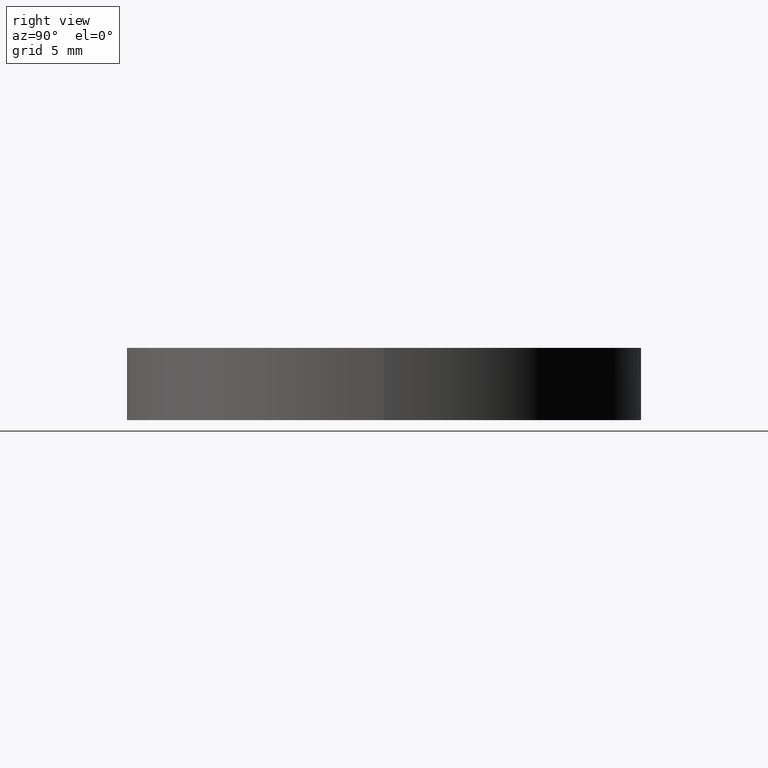
[diagram: clean part render]
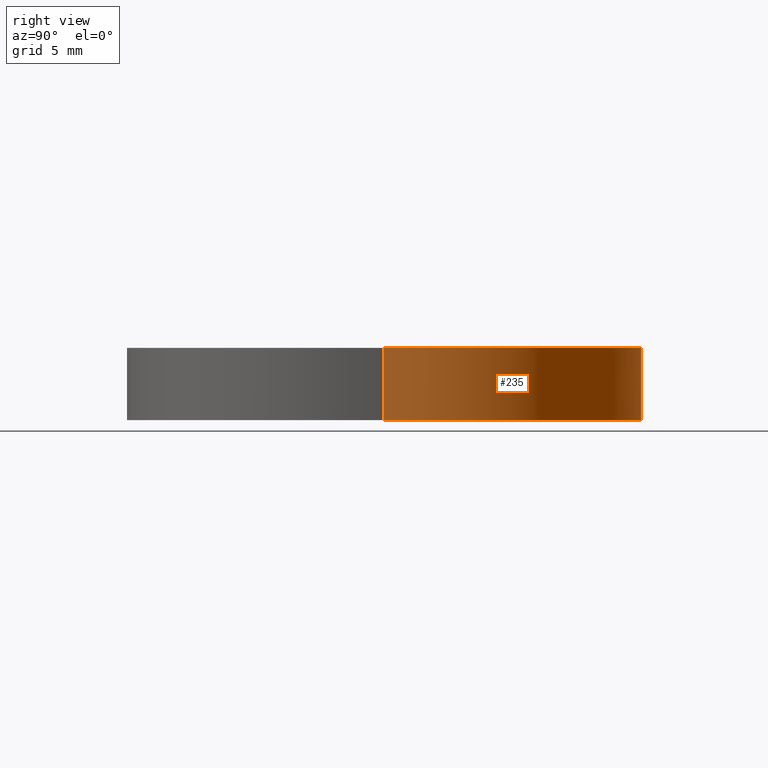
[diagram: same view with one face highlighted and labeled with its STEP entity id]
A machine part, right view. The second image highlights one B-rep face of the part: STEP entity #235.
In plain terms, the highlighted cylindrical surface (partial cylindrical patch) has radius 12.5 mm, axis along (-0, -0, -1).
Its self-contained STEP definition (entity closure, byte-faithful):
#12 = DIRECTION ( 'NONE',  ( 1.000000000000000000, 0.000000000000000000, 0.000000000000000000 ) ) ;
#14 = EDGE_CURVE ( 'NONE', #163, #31, #370, .T. ) ;
#25 = ORIENTED_EDGE ( 'NONE', *, *, #14, .F. ) ;
#31 = VERTEX_POINT ( 'NONE', #97 ) ;
#60 = ORIENTED_EDGE ( 'NONE', *, *, #291, .F. ) ;
#64 = CIRCLE ( 'NONE', #300, 12.50000000000000000 ) ;
#70 = CARTESIAN_POINT ( 'NONE',  ( 12.50000000000000000, 1.530808498934191521E-15, 3.500000000000000000 ) ) ;
#76 = DIRECTION ( 'NONE',  ( -1.000000000000000000, 0.000000000000000000, 0.000000000000000000 ) ) ;
#94 = VECTOR ( 'NONE', #405, 1000.000000000000000 ) ;
#97 = CARTESIAN_POINT ( 'NONE',  ( -12.50000000000000000, 0.000000000000000000, 0.000000000000000000 ) ) ;
#101 = CARTESIAN_POINT ( 'NONE',  ( 12.50000000000000000, 1.530808498934191521E-15, 0.000000000000000000 ) ) ;
#102 = CARTESIAN_POINT ( 'NONE',  ( -12.50000000000000000, 0.000000000000000000, 3.500000000000000000 ) ) ;
#120 = VERTEX_POINT ( 'NONE', #101 ) ;
#132 = AXIS2_PLACEMENT_3D ( 'NONE', #146, #212, #12 ) ;
#142 = CIRCLE ( 'NONE', #132, 12.50000000000000000 ) ;
#146 = CARTESIAN_POINT ( 'NONE',  ( 0.000000000000000000, 0.000000000000000000, 3.500000000000000000 ) ) ;
#151 = ORIENTED_EDGE ( 'NONE', *, *, #201, .T. ) ;
#163 = VERTEX_POINT ( 'NONE', #102 ) ;
#172 = EDGE_CURVE ( 'NONE', #415, #120, #259, .T. ) ;
#190 = ORIENTED_EDGE ( 'NONE', *, *, #172, .T. ) ;
#201 = EDGE_CURVE ( 'NONE', #120, #31, #64, .T. ) ;
#203 = CARTESIAN_POINT ( 'NONE',  ( 12.50000000000000000, 1.530808498934191521E-15, 3.500000000000000000 ) ) ;
#207 = DIRECTION ( 'NONE',  ( 0.000000000000000000, 0.000000000000000000, 1.000000000000000000 ) ) ;
#212 = DIRECTION ( 'NONE',  ( 0.000000000000000000, 0.000000000000000000, 1.000000000000000000 ) ) ;
#213 = AXIS2_PLACEMENT_3D ( 'NONE', #402, #272, #76 ) ;
#220 = CARTESIAN_POINT ( 'NONE',  ( -12.50000000000000000, 0.000000000000000000, 3.500000000000000000 ) ) ;
#235 = ADVANCED_FACE ( 'NONE', ( #250 ), #374, .T. ) ;
#244 = VECTOR ( 'NONE', #294, 1000.000000000000000 ) ;
#247 = EDGE_LOOP ( 'NONE', ( #60, #190, #151, #25 ) ) ;
#250 = FACE_OUTER_BOUND ( 'NONE', #247, .T. ) ;
#259 = LINE ( 'NONE', #203, #244 ) ;
#272 = DIRECTION ( 'NONE',  ( -0.000000000000000000, -0.000000000000000000, -1.000000000000000000 ) ) ;
#291 = EDGE_CURVE ( 'NONE', #415, #163, #142, .T. ) ;
#294 = DIRECTION ( 'NONE',  ( -0.000000000000000000, -0.000000000000000000, -1.000000000000000000 ) ) ;
#300 = AXIS2_PLACEMENT_3D ( 'NONE', #362, #207, #333 ) ;
#333 = DIRECTION ( 'NONE',  ( 1.000000000000000000, 0.000000000000000000, 0.000000000000000000 ) ) ;
#362 = CARTESIAN_POINT ( 'NONE',  ( 0.000000000000000000, 0.000000000000000000, 0.000000000000000000 ) ) ;
#370 = LINE ( 'NONE', #220, #94 ) ;
#374 = CYLINDRICAL_SURFACE ( 'NONE', #213, 12.50000000000000000 ) ;
#402 = CARTESIAN_POINT ( 'NONE',  ( 0.000000000000000000, 0.000000000000000000, 3.500000000000000000 ) ) ;
#405 = DIRECTION ( 'NONE',  ( -0.000000000000000000, -0.000000000000000000, -1.000000000000000000 ) ) ;
#415 = VERTEX_POINT ( 'NONE', #70 ) ;